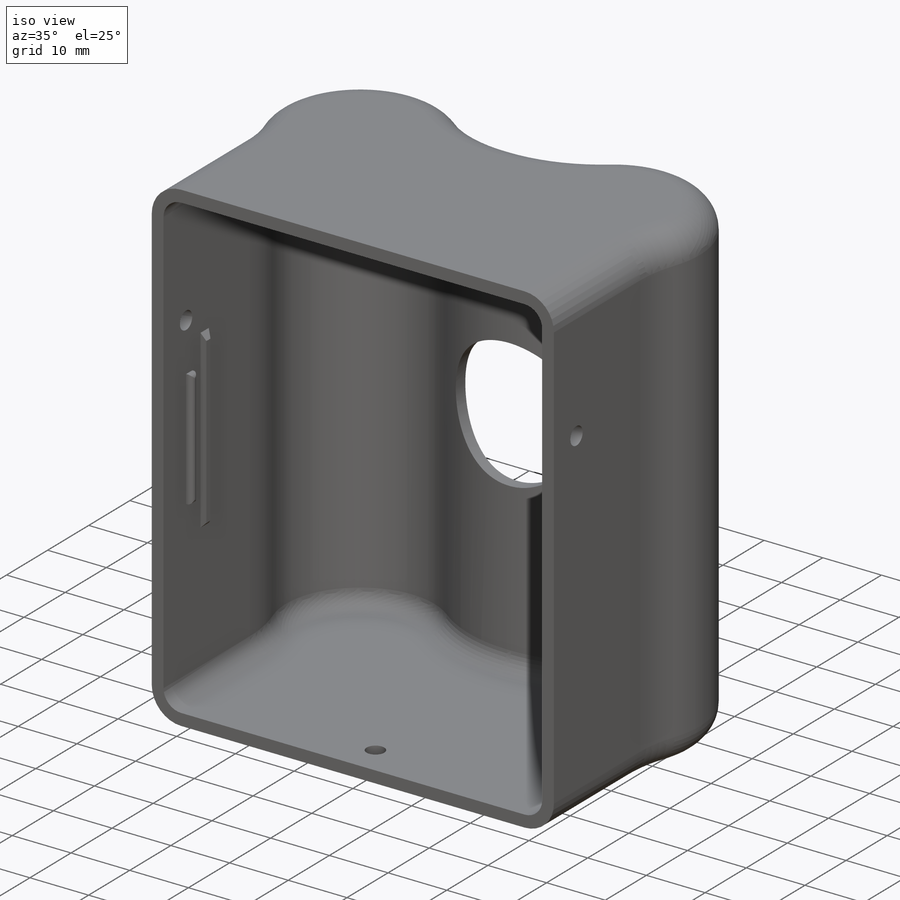
[diagram: iso view]
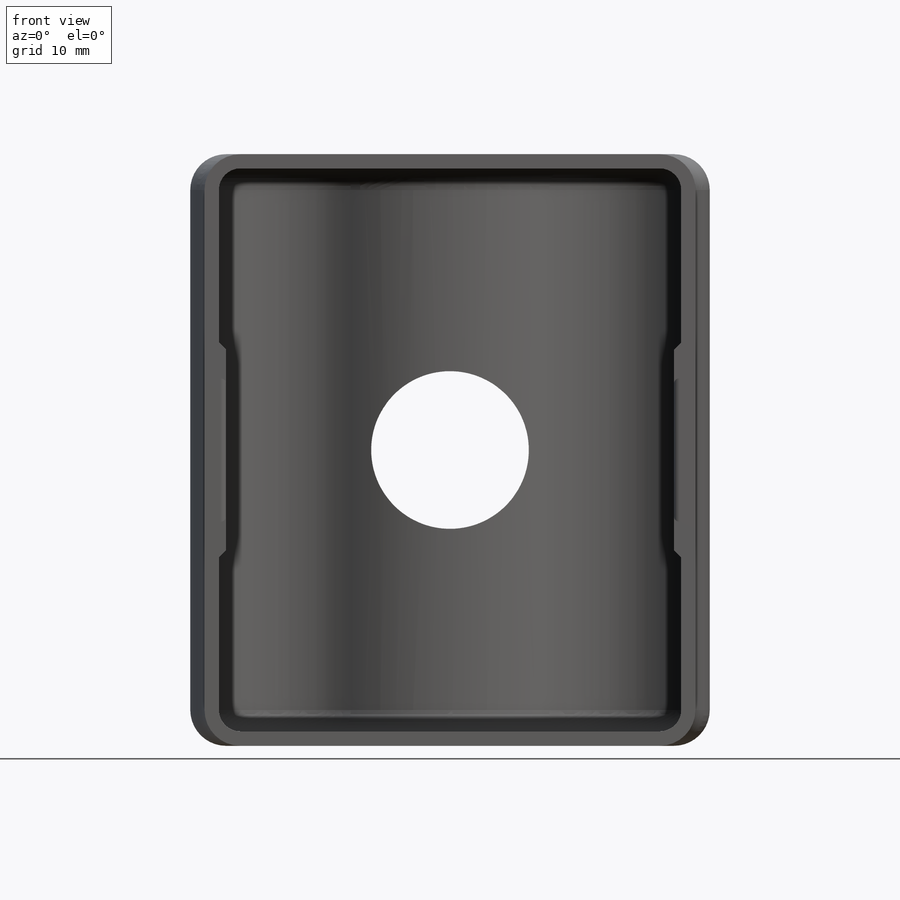
[diagram: front view]
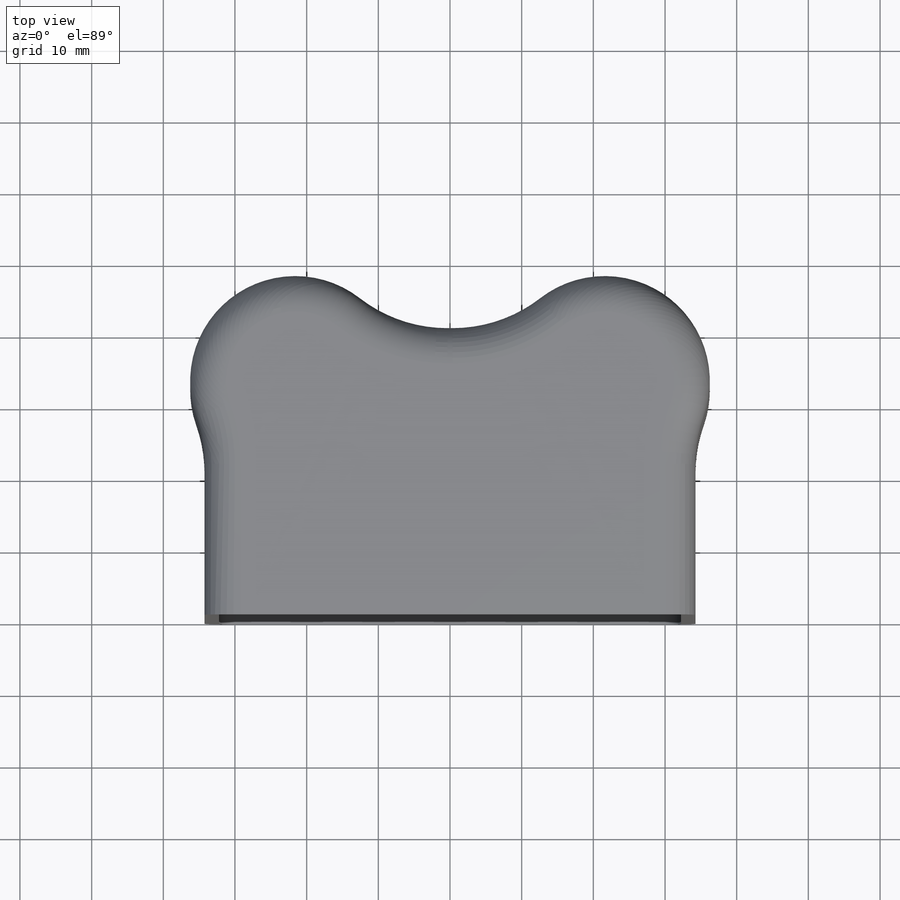
[diagram: top view]
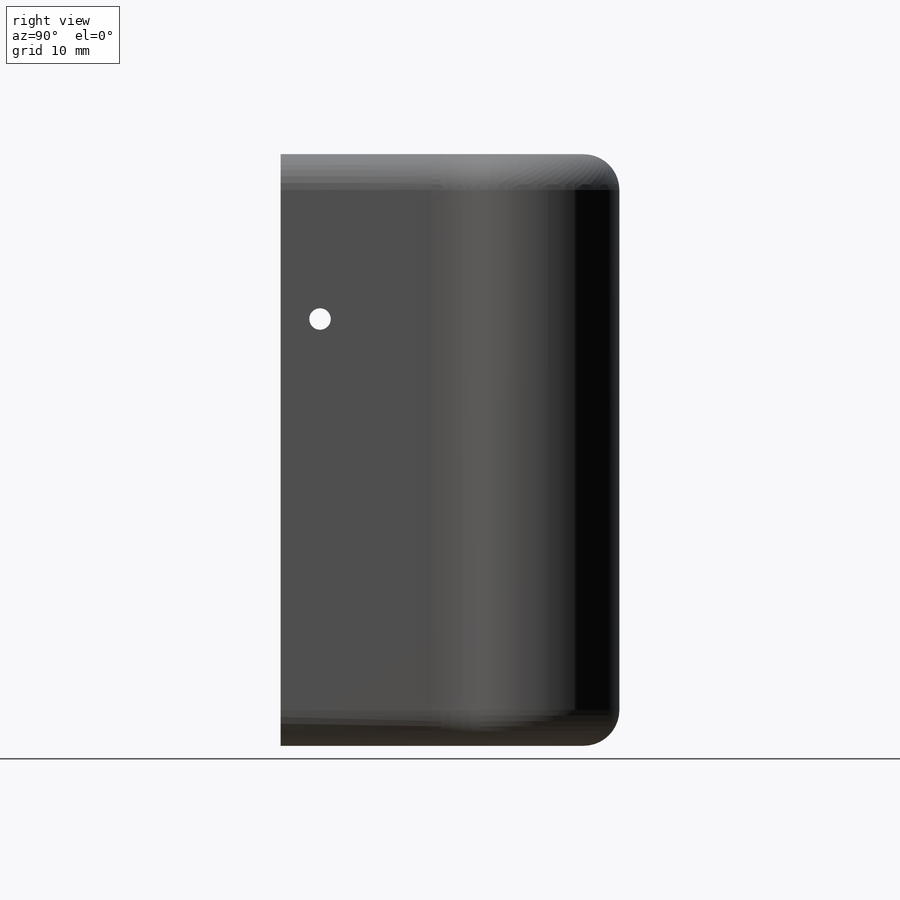
[diagram: right view]
SOLIDWORKS PART (.sldprt)
format: sldprt  version: not decoded by parser v0  size: 451,584 bytes
history: native  units: mm
features: sketch x6, extrude x3, fillet x3, cut_extrude x3, mirror x3, material x1, shell x1, chamfer x1 (+11 scaffold rows collapsed)
feature tree (32):
  scaffold x11  (default folders/planes/origin — collapsed)
  material  "Material <not specified>"
  sketch  "Sketch1"  dims[D1=40.0mm D2=68.5mm D3=25.0mm D4=25.0mm]
  extrude  "Boss-Extrude1"  Depth=82.55mm
  fillet  "Fillet1"  Radius=20mm
  fillet  "Fillet2"  Radius=5mm
  shell  "Shell1"  Thickness=2mm
  sketch  "Sketch3"  dims[D1=22.0mm]
  cut_extrude  "Cut-Extrude1"  [1 undecoded]
  sketch  "Sketch4"  dims[c1.D1=3.0mm c1.D2=3.0mm c2.D1=5.5mm c2.D3=18.0mm]
  cut_extrude  "Cut-Extrude2"  [1 undecoded]
  sketch  "Sketch5"  dims[D2=3.0mm D1=5.5mm]
  cut_extrude  "Cut-Extrude3"  [1 undecoded]
  mirror  "Mirror1"
  sketch  "Sketch6"  dims[D1=6.25mm D2=1.5mm D3=20.0mm]
  extrude  "Boss-Extrude2"  Depth=1mm
  fillet  "Fillet3"  Radius=0.75mm
  mirror  "Mirror2"
  sketch  "Sketch7"  dims[D1=2.0mm D2=30.0mm]
  extrude  "Boss-Extrude3"  Depth=2mm
  chamfer  "Chamfer1"  Distance=1mm Angle=45deg
  mirror  "Mirror3"
decode coverage: 14 of 20 modeling features carry decoded parameters
note: 3 parameter values undecoded
summary: no parameter record found for 3 features
note: suppression state not decoded; provenance and decode notes live in map.json
